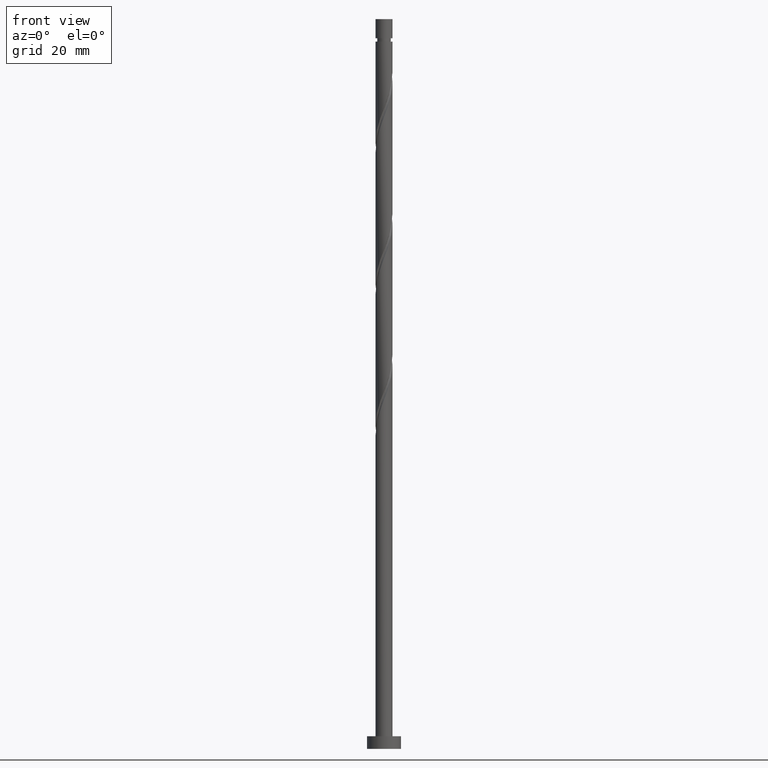
[diagram: clean part render]
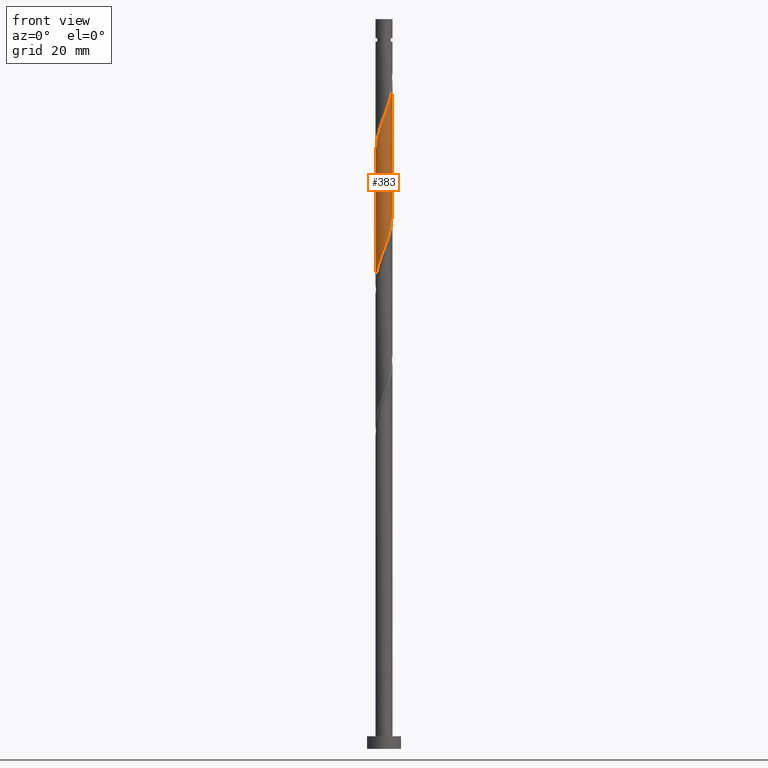
[diagram: same view with one face highlighted and labeled with its STEP entity id]
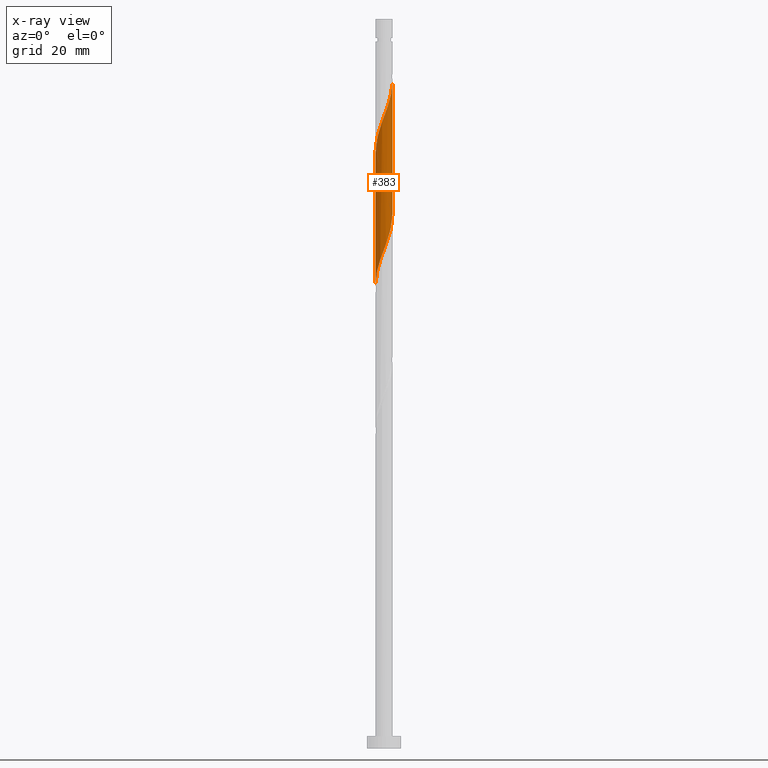
[diagram: x-ray of the same camera — body ghosted, the highlighted face saturated]
A machine part, front view. The second image highlights one B-rep face of the part: STEP entity #383.
The next image is the same camera in x-ray: the body ghosted, the highlighted face saturated — about 0% of this face is hidden behind the body in this view.
In plain terms, the highlighted cylindrical surface (edge-blend (fillet) strip) has radius 2 mm, axis along (-0, -0, -1).
Its self-contained STEP definition (entity closure, byte-faithful):
#7 = VERTEX_POINT ( 'NONE', #1137 ) ;
#12 = CARTESIAN_POINT ( 'NONE',  ( -0.6560338701139455386, -1.907602967534732130, 115.9898539428577777 ) ) ;
#21 = CARTESIAN_POINT ( 'NONE',  ( -1.980049565276632340, -0.3856594865056687804, 110.4342983873022490 ) ) ;
#36 = VERTEX_POINT ( 'NONE', #1009 ) ;
#40 = DIRECTION ( 'NONE',  ( -0.000000000000000000, -0.000000000000000000, -1.000000000000000000 ) ) ;
#58 =( BOUNDED_CURVE ( )  B_SPLINE_CURVE ( 2, ( #262, #268, #504, #1201, #1309, #1341, #1584, #247, #1740, #1069, #912, #782, #522, #110, #646, #808, #1210, #133, #1061, #1598, #1184, #1726, #512, #1053, #790, #1323, #117 ),
 .UNSPECIFIED., .F., .T. ) 
 B_SPLINE_CURVE_WITH_KNOTS ( ( 3, 2, 2, 2, 2, 2, 2, 2, 2, 2, 2, 2, 2, 3 ),
 ( 0.5545317669814462391, 0.5625000000000000000, 0.5729166666666667407, 0.5833333333333332593, 0.5937500000000000000, 0.6041666666666667407, 0.6145833333333332593, 0.6250000000000000000, 0.6354166666666667407, 0.6458333333333332593, 0.6562500000000000000, 0.6666666666666667407, 0.6770833333333332593, 0.6795317669814465722 ),
 .UNSPECIFIED. ) 
 CURVE ( )  GEOMETRIC_REPRESENTATION_ITEM ( )  RATIONAL_B_SPLINE_CURVE ( ( 0.9062941362546506063, 0.9031415850403549106, 0.9090909090909304879, 0.9013135103398485226, 0.9090909090909304879, 0.9013135103398485226, 0.9090909090909304879, 0.9013135103398485226, 0.9090909090909304879, 0.9013135103398485226, 0.9090909090909304879, 0.9013135103398485226, 0.9090909090909304879, 0.9013135103398485226, 0.9090909090909304879, 0.9013135103398485226, 0.9090909090909304879, 0.9013135103398485226, 0.9090909090909304879, 0.9013135103398485226, 0.9090909090909304879, 0.9013135103398485226, 0.9090909090909304879, 0.9013135103398485226, 0.9090909090909304879, 0.9072628343904238779, 0.9062941362546503843 ) ) 
 REPRESENTATION_ITEM ( '' )  );
#110 = CARTESIAN_POINT ( 'NONE',  ( 0.1399560795713519490, -2.012397032465270019, 149.3231872761911347 ) ) ;
#117 = CARTESIAN_POINT ( 'NONE',  ( 2.000000000000003109, -3.065525810942096843E-16, 157.2873983987588815 ) ) ;
#133 = CARTESIAN_POINT ( 'NONE',  ( 1.127404036555501810, -1.672808912829666150, 152.1009650539689062 ) ) ;
#151 = DIRECTION ( 'NONE',  ( -1.000000000000000000, 0.000000000000000000, 0.000000000000000000 ) ) ;
#160 = CARTESIAN_POINT ( 'NONE',  ( -2.000000000000000000, -3.050572026498495541E-15, 109.4145317091789735 ) ) ;
#168 = CARTESIAN_POINT ( 'NONE',  ( -1.521943481029063516, -1.324015695162687578, 113.2120761650800205 ) ) ;
#188 = CARTESIAN_POINT ( 'NONE',  ( -2.000000000000000000, -3.050572026498495541E-15, 109.4145317091789735 ) ) ;
#190 = CARTESIAN_POINT ( 'NONE',  ( -1.127404036555501810, -1.672808912829662820, 114.6009650539688636 ) ) ;
#195 = DIRECTION ( 'NONE',  ( -0.000000000000000000, -0.000000000000000000, -1.000000000000000000 ) ) ;
#214 = CARTESIAN_POINT ( 'NONE',  ( 0.8849929959097652121, -1.812764992401016295, 120.1565206095244633 ) ) ;
#234 = CARTESIAN_POINT ( 'NONE',  ( -2.000000000000000000, 0.000000000000000000, 172.0000000000000000 ) ) ;
#247 = CARTESIAN_POINT ( 'NONE',  ( -1.324015695162690243, -1.521943481029064404, 145.1565206095244775 ) ) ;
#262 = CARTESIAN_POINT ( 'NONE',  ( -2.000000000000002220, 1.846792378787067730E-15, 140.6207317320921959 ) ) ;
#268 = CARTESIAN_POINT ( 'NONE',  ( -2.000000000000002665, -0.2010075630518430301, 141.1541581012814675 ) ) ;
#273 = CARTESIAN_POINT ( 'NONE',  ( 0.3856594865056682253, -1.980049565276633006, 118.7676317206355492 ) ) ;
#275 = CARTESIAN_POINT ( 'NONE',  ( -0.3979949748426488965, -1.959999999999999520, 116.6842983873021922 ) ) ;
#305 = CARTESIAN_POINT ( 'NONE',  ( 1.498412303996174311, -1.324673758792282552, 122.2398539428577635 ) ) ;
#331 = CARTESIAN_POINT ( 'NONE',  ( 2.000000000000003109, -3.065525810942096843E-16, 157.2873983987588531 ) ) ;
#332 = EDGE_CURVE ( 'NONE', #660, #7, #1296, .T. ) ;
#352 = LINE ( 'NONE', #234, #804 ) ;
#356 = EDGE_CURVE ( 'NONE', #7, #425, #1013, .T. ) ;
#383 = ADVANCED_FACE ( 'NONE', ( #1364 ), #981, .T. ) ;
#425 = VERTEX_POINT ( 'NONE', #160 ) ;
#504 = CARTESIAN_POINT ( 'NONE',  ( -1.960000000000002185, -0.3979949748426488410, 141.6842983873021922 ) ) ;
#512 = CARTESIAN_POINT ( 'NONE',  ( 1.896407278838825983, -0.6353262412077195220, 155.5731872761910779 ) ) ;
#522 = CARTESIAN_POINT ( 'NONE',  ( -0.1228517034671591374, -1.996223298870951846, 148.6287428317466208 ) ) ;
#566 = CARTESIAN_POINT ( 'NONE',  ( 1.959999999999999520, -0.3979949748426491185, 125.0176317206355350 ) ) ;
#578 = CARTESIAN_POINT ( 'NONE',  ( -1.996223298870949403, -0.1228517034671579716, 109.7398539428578061 ) ) ;
#588 = ORIENTED_EDGE ( 'NONE', *, *, #1380, .F. ) ;
#622 = VECTOR ( 'NONE', #1208, 1000.000000000000000 ) ;
#625 = CARTESIAN_POINT ( 'NONE',  ( -0.1399560795713535588, -2.012397032465268243, 117.3787428317466492 ) ) ;
#646 = CARTESIAN_POINT ( 'NONE',  ( 0.3979949748426485634, -1.960000000000002185, 150.0176317206355350 ) ) ;
#660 = VERTEX_POINT ( 'NONE', #331 ) ;
#702 = CARTESIAN_POINT ( 'NONE',  ( -1.896407278838823984, -0.6353262412077168575, 111.1287428317466635 ) ) ;
#712 = CARTESIAN_POINT ( 'NONE',  ( -2.000000000000000000, -0.06148390331534230036, 109.5776953972071226 ) ) ;
#730 = CARTESIAN_POINT ( 'NONE',  ( 0.000000000000000000, 0.000000000000000000, 172.0000000000000000 ) ) ;
#753 = CARTESIAN_POINT ( 'NONE',  ( 0.6353262412077166355, -1.896407278838824206, 119.4620761650800063 ) ) ;
#782 = CARTESIAN_POINT ( 'NONE',  ( -0.3856594865056702792, -1.980049565276635226, 147.9342983873022774 ) ) ;
#790 = CARTESIAN_POINT ( 'NONE',  ( 1.996223298870951846, -0.1228517034671601643, 156.9620761650799921 ) ) ;
#804 = VECTOR ( 'NONE', #195, 1000.000000000000000 ) ;
#808 = CARTESIAN_POINT ( 'NONE',  ( 0.6560338701139447615, -1.907602967534735461, 150.7120761650799636 ) ) ;
#912 = CARTESIAN_POINT ( 'NONE',  ( -0.6353262412077193000, -1.896407278838825983, 147.2398539428577351 ) ) ;
#964 = ORIENTED_EDGE ( 'NONE', *, *, #356, .F. ) ;
#981 = CYLINDRICAL_SURFACE ( 'NONE', #1489, 2.000000000000000000 ) ;
#1009 = CARTESIAN_POINT ( 'NONE',  ( -2.000000000000002220, 1.846792378787067730E-15, 140.6207317320921959 ) ) ;
#1013 =( BOUNDED_CURVE ( )  B_SPLINE_CURVE ( 2, ( #1090, #1330, #566, #1075, #1106, #1643, #305, #1567, #1016, #214, #753, #273, #1160, #625, #275, #12, #1665, #190, #1188, #168, #1258, #1401, #702, #21, #578, #712, #188 ),
 .UNSPECIFIED., .F., .T. ) 
 B_SPLINE_CURVE_WITH_KNOTS ( ( 3, 2, 2, 2, 2, 2, 2, 2, 2, 2, 2, 2, 2, 3 ),
 ( 0.5545317669814462391, 0.5625000000000000000, 0.5729166666666666297, 0.5833333333333333703, 0.5937500000000000000, 0.6041666666666666297, 0.6145833333333333703, 0.6250000000000000000, 0.6354166666666666297, 0.6458333333333333703, 0.6562500000000000000, 0.6666666666666666297, 0.6770833333333333703, 0.6795317669814464612 ),
 .UNSPECIFIED. ) 
 CURVE ( )  GEOMETRIC_REPRESENTATION_ITEM ( )  RATIONAL_B_SPLINE_CURVE ( ( 0.9062941362546450552, 0.9031415850403492485, 0.9090909090909247148, 0.9013135103398430825, 0.9090909090909247148, 0.9013135103398430825, 0.9090909090909247148, 0.9013135103398430825, 0.9090909090909247148, 0.9013135103398430825, 0.9090909090909247148, 0.9013135103398430825, 0.9090909090909247148, 0.9013135103398430825, 0.9090909090909247148, 0.9013135103398430825, 0.9090909090909247148, 0.9013135103398430825, 0.9090909090909247148, 0.9013135103398430825, 0.9090909090909247148, 0.9013135103398430825, 0.9090909090909247148, 0.9013135103398430825, 0.9090909090909247148, 0.9072628343904183268, 0.9062941362546449442 ) ) 
 REPRESENTATION_ITEM ( '' )  );
#1016 = CARTESIAN_POINT ( 'NONE',  ( 1.104504345536225784, -1.667354236715039573, 120.8509650539688636 ) ) ;
#1052 = EDGE_LOOP ( 'NONE', ( #1270, #588, #1576, #964 ) ) ;
#1053 = CARTESIAN_POINT ( 'NONE',  ( 1.980049565276634782, -0.3856594865056713894, 156.2676317206355918 ) ) ;
#1061 = CARTESIAN_POINT ( 'NONE',  ( 1.324673758792283218, -1.498412303996177419, 152.7954094984132780 ) ) ;
#1069 = CARTESIAN_POINT ( 'NONE',  ( -0.8849929959097676546, -1.812764992401018294, 146.5454094984133064 ) ) ;
#1075 = CARTESIAN_POINT ( 'NONE',  ( 1.907602967534731686, -0.6560338701139462048, 124.3231872761911205 ) ) ;
#1090 = CARTESIAN_POINT ( 'NONE',  ( 2.000000000000000000, 2.572050924302653158E-15, 126.0811983758456449 ) ) ;
#1106 = CARTESIAN_POINT ( 'NONE',  ( 1.790205940182196809, -0.8917189533347241737, 123.6287428317466350 ) ) ;
#1137 = CARTESIAN_POINT ( 'NONE',  ( 2.000000000000000000, 2.572050924302653158E-15, 126.0811983758456449 ) ) ;
#1160 = CARTESIAN_POINT ( 'NONE',  ( 0.1228517034671574026, -1.996223298870950291, 118.0731872761910921 ) ) ;
#1184 = CARTESIAN_POINT ( 'NONE',  ( 1.667354236715040683, -1.104504345536229115, 154.1842983873022206 ) ) ;
#1188 = CARTESIAN_POINT ( 'NONE',  ( -1.324673758792282552, -1.498412303996174311, 113.9065206095244491 ) ) ;
#1201 = CARTESIAN_POINT ( 'NONE',  ( -1.907602967534735461, -0.6560338701139448725, 142.3787428317466777 ) ) ;
#1205 = EDGE_CURVE ( 'NONE', #36, #425, #352, .T. ) ;
#1208 = DIRECTION ( 'NONE',  ( -0.000000000000000000, -0.000000000000000000, -1.000000000000000000 ) ) ;
#1210 = CARTESIAN_POINT ( 'NONE',  ( 0.8917189533347229524, -1.790205940182200139, 151.4065206095244491 ) ) ;
#1258 = CARTESIAN_POINT ( 'NONE',  ( -1.667354236715039129, -1.104504345536226451, 112.5176317206355492 ) ) ;
#1270 = ORIENTED_EDGE ( 'NONE', *, *, #332, .F. ) ;
#1296 = LINE ( 'NONE', #1447, #622 ) ;
#1309 = CARTESIAN_POINT ( 'NONE',  ( -1.790205940182199695, -0.8917189533347235075, 143.0731872761910495 ) ) ;
#1323 = CARTESIAN_POINT ( 'NONE',  ( 2.000000000000003109, -0.06148390331533960806, 157.1242347107306898 ) ) ;
#1330 = CARTESIAN_POINT ( 'NONE',  ( 2.000000000000000444, -0.2010075630518417811, 125.5477720066563734 ) ) ;
#1341 = CARTESIAN_POINT ( 'NONE',  ( -1.672808912829665706, -1.127404036555502032, 143.7676317206355634 ) ) ;
#1364 = FACE_OUTER_BOUND ( 'NONE', #1052, .T. ) ;
#1380 = EDGE_CURVE ( 'NONE', #36, #660, #58, .T. ) ;
#1401 = CARTESIAN_POINT ( 'NONE',  ( -1.812764992401016295, -0.8849929959097652121, 111.8231872761911205 ) ) ;
#1447 = CARTESIAN_POINT ( 'NONE',  ( 2.000000000000000000, 2.449293598294706414E-16, 172.0000000000000000 ) ) ;
#1489 = AXIS2_PLACEMENT_3D ( 'NONE', #730, #40, #151 ) ;
#1567 = CARTESIAN_POINT ( 'NONE',  ( 1.324015695162687356, -1.521943481029063072, 121.5454094984133491 ) ) ;
#1576 = ORIENTED_EDGE ( 'NONE', *, *, #1205, .T. ) ;
#1584 = CARTESIAN_POINT ( 'NONE',  ( -1.498412303996177419, -1.324673758792283440, 144.4620761650799636 ) ) ;
#1598 = CARTESIAN_POINT ( 'NONE',  ( 1.521943481029064404, -1.324015695162690243, 153.4898539428577351 ) ) ;
#1643 = CARTESIAN_POINT ( 'NONE',  ( 1.672808912829662376, -1.127404036555502920, 122.9342983873022490 ) ) ;
#1665 = CARTESIAN_POINT ( 'NONE',  ( -0.8917189533347233965, -1.790205940182197031, 115.2954094984133206 ) ) ;
#1726 = CARTESIAN_POINT ( 'NONE',  ( 1.812764992401018072, -0.8849929959097677656, 154.8787428317467061 ) ) ;
#1740 = CARTESIAN_POINT ( 'NONE',  ( -1.104504345536228449, -1.667354236715040905, 145.8509650539688209 ) ) ;